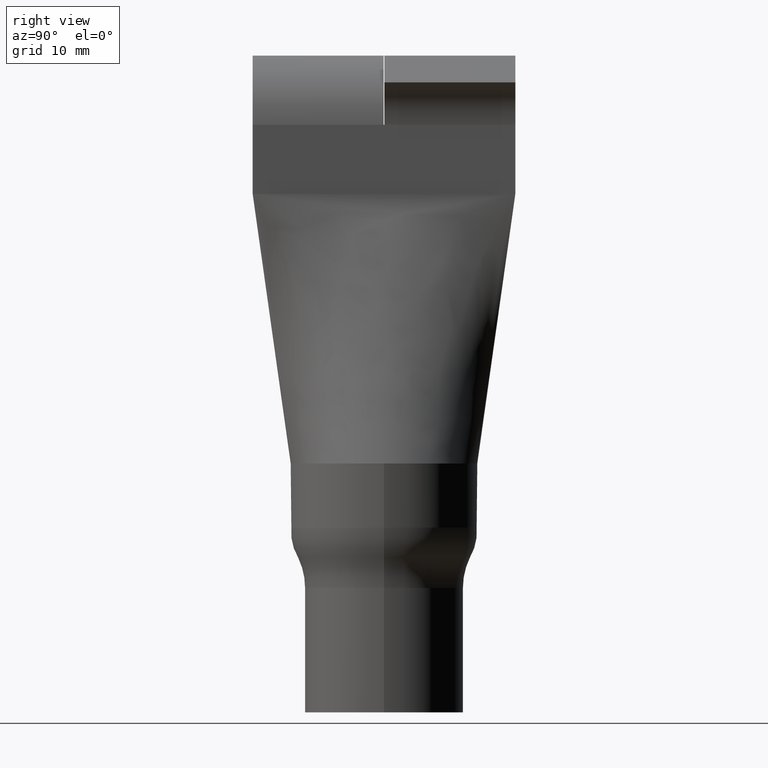
[diagram: clean part render]
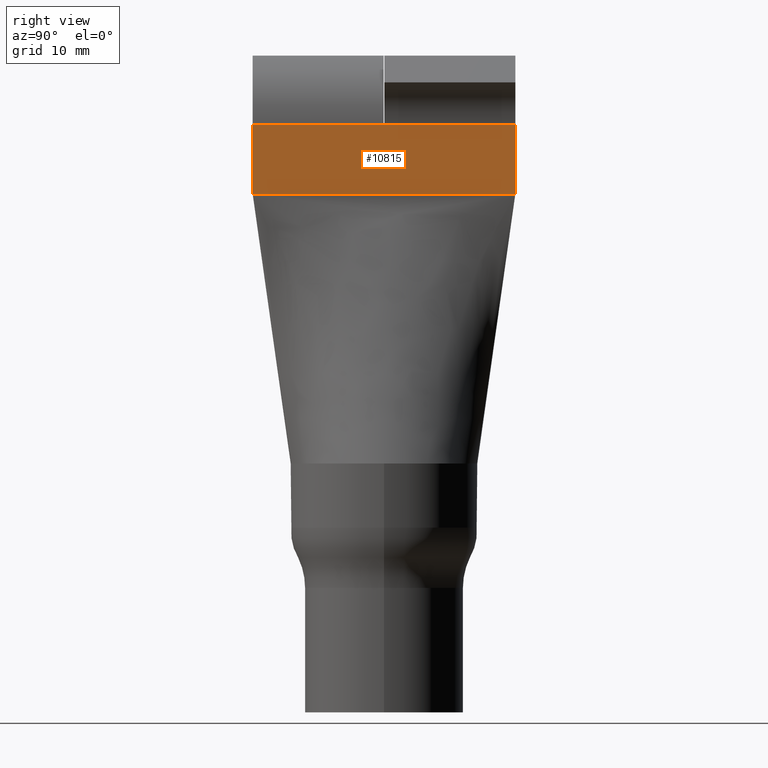
[diagram: same view with one face highlighted and labeled with its STEP entity id]
A machine part, right view. The second image highlights one B-rep face of the part: STEP entity #10815.
In plain terms, the highlighted planar face has unit normal (-1, 0, 0).
Its self-contained STEP definition (entity closure, byte-faithful):
#487 = CARTESIAN_POINT ( 'NONE',  ( 2.500000000000001800, 19.00000000000000400, 36.67246420652639200 ) ) ;
#661 = VECTOR ( 'NONE', #4436, 1000.000000000000000 ) ;
#722 = VERTEX_POINT ( 'NONE', #5283 ) ;
#1305 = VERTEX_POINT ( 'NONE', #13048 ) ;
#1424 = VERTEX_POINT ( 'NONE', #2330 ) ;
#2330 = CARTESIAN_POINT ( 'NONE',  ( 2.499999999999999100, 0.05000000000000000300, 84.99999999999998600 ) ) ;
#2600 = EDGE_CURVE ( 'NONE', #5131, #722, #9557, .T. ) ;
#2645 = DIRECTION ( 'NONE',  ( -1.255391989193742400E-016, -1.000000000000000000, 0.0000000000000000000 ) ) ;
#2966 = DIRECTION ( 'NONE',  ( -0.0000000000000000000, -0.0000000000000000000, 1.000000000000000000 ) ) ;
#3065 = VERTEX_POINT ( 'NONE', #6742 ) ;
#3259 = VECTOR ( 'NONE', #10401, 1000.000000000000000 ) ;
#3458 = VECTOR ( 'NONE', #15236, 1000.000000000000000 ) ;
#3815 = ORIENTED_EDGE ( 'NONE', *, *, #10999, .F. ) ;
#4254 = CARTESIAN_POINT ( 'NONE',  ( 2.500000000000001800, 19.00000000000000400, 84.99999999999998600 ) ) ;
#4436 = DIRECTION ( 'NONE',  ( -0.0000000000000000000, -0.0000000000000000000, 1.000000000000000000 ) ) ;
#5066 = VECTOR ( 'NONE', #15911, 1000.000000000000000 ) ;
#5083 = LINE ( 'NONE', #487, #11106 ) ;
#5131 = VERTEX_POINT ( 'NONE', #6371 ) ;
#5283 = CARTESIAN_POINT ( 'NONE',  ( 2.499999999999996900, -18.99999999999999600, 84.99999999999998600 ) ) ;
#6235 = LINE ( 'NONE', #10966, #5066 ) ;
#6371 = CARTESIAN_POINT ( 'NONE',  ( 2.499999999999996900, -18.99999999999999600, 75.00000000000000000 ) ) ;
#6562 = CARTESIAN_POINT ( 'NONE',  ( 2.500000000000001800, 19.00000000000000400, 74.99999999999998600 ) ) ;
#6742 = CARTESIAN_POINT ( 'NONE',  ( 2.499999999999999100, -0.04999999999999796300, 84.99999999999998600 ) ) ;
#6770 = CARTESIAN_POINT ( 'NONE',  ( 2.499999999999999600, -0.04999999999999857300, 84.99999999999998600 ) ) ;
#7008 = ORIENTED_EDGE ( 'NONE', *, *, #14770, .T. ) ;
#7590 = VECTOR ( 'NONE', #15390, 1000.000000000000000 ) ;
#7624 = CARTESIAN_POINT ( 'NONE',  ( 2.500000000000001800, 19.00000000000000400, 36.67246420652639200 ) ) ;
#7870 = ORIENTED_EDGE ( 'NONE', *, *, #2600, .F. ) ;
#8681 = LINE ( 'NONE', #14104, #3458 ) ;
#9033 = PLANE ( 'NONE',  #10916 ) ;
#9557 = LINE ( 'NONE', #15502, #661 ) ;
#10401 = DIRECTION ( 'NONE',  ( 1.373132039031773600E-016, 1.000000000000000000, -0.0000000000000000000 ) ) ;
#10815 = ADVANCED_FACE ( 'NONE', ( #13710 ), #9033, .F. ) ;
#10916 = AXIS2_PLACEMENT_3D ( 'NONE', #7624, #15188, #2645 ) ;
#10966 = CARTESIAN_POINT ( 'NONE',  ( 2.500000000000001800, 19.00000000000000400, 84.99999999999998600 ) ) ;
#10996 = LINE ( 'NONE', #6770, #3259 ) ;
#10999 = EDGE_CURVE ( 'NONE', #14214, #5131, #8681, .T. ) ;
#11106 = VECTOR ( 'NONE', #2966, 1000.000000000000000 ) ;
#11579 = ORIENTED_EDGE ( 'NONE', *, *, #13221, .T. ) ;
#11879 = EDGE_LOOP ( 'NONE', ( #7870, #3815, #11579, #13054, #7008, #11893 ) ) ;
#11883 = EDGE_CURVE ( 'NONE', #722, #3065, #10996, .T. ) ;
#11893 = ORIENTED_EDGE ( 'NONE', *, *, #11883, .F. ) ;
#13048 = CARTESIAN_POINT ( 'NONE',  ( 2.500000000000001800, 19.00000000000000400, 84.99999999999998600 ) ) ;
#13054 = ORIENTED_EDGE ( 'NONE', *, *, #13818, .T. ) ;
#13221 = EDGE_CURVE ( 'NONE', #14214, #1305, #5083, .T. ) ;
#13710 = FACE_OUTER_BOUND ( 'NONE', #11879, .T. ) ;
#13818 = EDGE_CURVE ( 'NONE', #1305, #1424, #6235, .T. ) ;
#14104 = CARTESIAN_POINT ( 'NONE',  ( 2.500000000000001800, 19.00000000000000400, 75.00000000000000000 ) ) ;
#14214 = VERTEX_POINT ( 'NONE', #6562 ) ;
#14770 = EDGE_CURVE ( 'NONE', #1424, #3065, #15125, .T. ) ;
#15125 = LINE ( 'NONE', #4254, #7590 ) ;
#15188 = DIRECTION ( 'NONE',  ( -1.000000000000000000, 1.255391989193742400E-016, 0.0000000000000000000 ) ) ;
#15236 = DIRECTION ( 'NONE',  ( -1.255391989193742200E-016, -1.000000000000000000, 0.0000000000000000000 ) ) ;
#15390 = DIRECTION ( 'NONE',  ( -1.255391989193742200E-016, -1.000000000000000000, 0.0000000000000000000 ) ) ;
#15502 = CARTESIAN_POINT ( 'NONE',  ( 2.499999999999996900, -18.99999999999999600, 36.67246420652639200 ) ) ;
#15911 = DIRECTION ( 'NONE',  ( -1.255391989193742200E-016, -1.000000000000000000, 0.0000000000000000000 ) ) ;